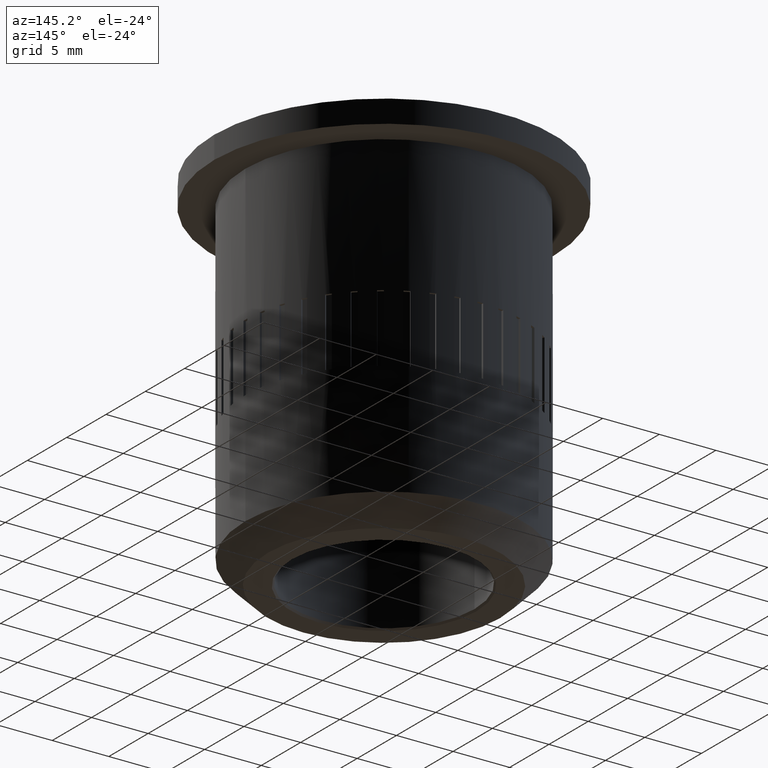
[diagram: clean part render]
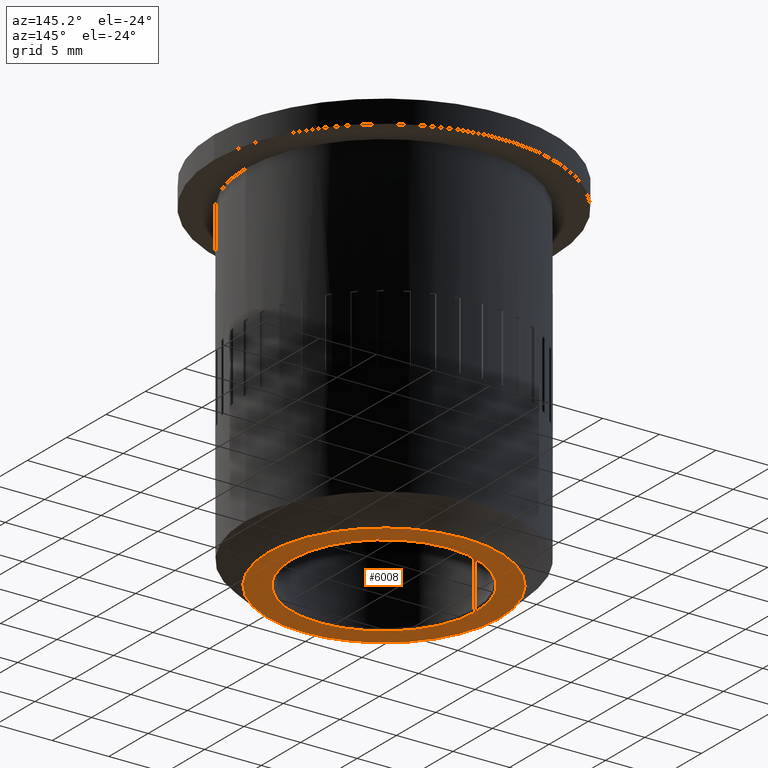
[diagram: same view with one face highlighted and labeled with its STEP entity id]
A machine part, auxiliary view. The second image highlights one B-rep face of the part: STEP entity #6008.
In plain terms, the highlighted planar face has unit normal (0, 0, 1).
Its self-contained STEP definition (entity closure, byte-faithful):
#123 = EDGE_LOOP ( 'NONE', ( #4014, #4012 ) ) ;
#193 = VERTEX_POINT ( 'NONE', #2277 ) ;
#222 = VERTEX_POINT ( 'NONE', #2297 ) ;
#229 = VERTEX_POINT ( 'NONE', #1211 ) ;
#235 = VERTEX_POINT ( 'NONE', #1226 ) ;
#775 = PLANE ( 'NONE',  #3309 ) ;
#776 = CARTESIAN_POINT ( 'NONE',  ( 0.0000000000000000000, 0.0000000000000000000, 0.0000000000000000000 ) ) ;
#777 = DIRECTION ( 'NONE',  ( 0.0000000000000000000, 0.0000000000000000000, 1.000000000000000000 ) ) ;
#778 = DIRECTION ( 'NONE',  ( 1.000000000000000000, 0.0000000000000000000, -0.0000000000000000000 ) ) ;
#892 = EDGE_CURVE ( 'NONE', #229, #235, #5231, .T. ) ;
#1099 = CARTESIAN_POINT ( 'NONE',  ( 0.0000000000000000000, 0.0000000000000000000, 0.0000000000000000000 ) ) ;
#1100 = DIRECTION ( 'NONE',  ( 0.0000000000000000000, 0.0000000000000000000, 1.000000000000000000 ) ) ;
#1101 = DIRECTION ( 'NONE',  ( 1.000000000000000000, 0.0000000000000000000, 0.0000000000000000000 ) ) ;
#1211 = CARTESIAN_POINT ( 'NONE',  ( -8.149999999999996800, 0.0000000000000000000, 0.0000000000000000000 ) ) ;
#1215 = CARTESIAN_POINT ( 'NONE',  ( 0.0000000000000000000, 0.0000000000000000000, 0.0000000000000000000 ) ) ;
#1217 = DIRECTION ( 'NONE',  ( 0.0000000000000000000, 0.0000000000000000000, 1.000000000000000000 ) ) ;
#1226 = CARTESIAN_POINT ( 'NONE',  ( 8.149999999999996800, 9.980871413050924000E-016, 0.0000000000000000000 ) ) ;
#1254 = EDGE_LOOP ( 'NONE', ( #4008, #4010 ) ) ;
#1274 = EDGE_CURVE ( 'NONE', #235, #229, #4852, .T. ) ;
#1491 = CARTESIAN_POINT ( 'NONE',  ( 0.0000000000000000000, 0.0000000000000000000, 0.0000000000000000000 ) ) ;
#1492 = DIRECTION ( 'NONE',  ( -0.0000000000000000000, -0.0000000000000000000, -1.000000000000000000 ) ) ;
#1493 = DIRECTION ( 'NONE',  ( 1.000000000000000000, 0.0000000000000000000, 0.0000000000000000000 ) ) ;
#2162 = CIRCLE ( 'NONE', #2774, 10.24999999999999800 ) ;
#2277 = CARTESIAN_POINT ( 'NONE',  ( -10.24999999999999800, 1.377727649040772400E-015, 0.0000000000000000000 ) ) ;
#2297 = CARTESIAN_POINT ( 'NONE',  ( 10.24999999999999800, 0.0000000000000000000, 0.0000000000000000000 ) ) ;
#2428 = CIRCLE ( 'NONE', #2754, 10.24999999999999800 ) ;
#2643 = EDGE_CURVE ( 'NONE', #193, #222, #2428, .T. ) ;
#2687 = AXIS2_PLACEMENT_3D ( 'NONE', #1099, #1100, #1101 ) ;
#2701 = AXIS2_PLACEMENT_3D ( 'NONE', #1215, #1217, #5074 ) ;
#2754 = AXIS2_PLACEMENT_3D ( 'NONE', #5791, #5792, #5793 ) ;
#2774 = AXIS2_PLACEMENT_3D ( 'NONE', #1491, #1492, #1493 ) ;
#3173 = FACE_OUTER_BOUND ( 'NONE', #1254, .T. ) ;
#3174 = FACE_BOUND ( 'NONE', #123, .T. ) ;
#3309 = AXIS2_PLACEMENT_3D ( 'NONE', #776, #777, #778 ) ;
#4008 = ORIENTED_EDGE ( 'NONE', *, *, #4171, .T. ) ;
#4010 = ORIENTED_EDGE ( 'NONE', *, *, #2643, .T. ) ;
#4012 = ORIENTED_EDGE ( 'NONE', *, *, #1274, .T. ) ;
#4014 = ORIENTED_EDGE ( 'NONE', *, *, #892, .T. ) ;
#4171 = EDGE_CURVE ( 'NONE', #222, #193, #2162, .T. ) ;
#4852 = CIRCLE ( 'NONE', #2701, 8.149999999999996800 ) ;
#5074 = DIRECTION ( 'NONE',  ( 1.000000000000000000, 0.0000000000000000000, 0.0000000000000000000 ) ) ;
#5231 = CIRCLE ( 'NONE', #2687, 8.149999999999996800 ) ;
#5791 = CARTESIAN_POINT ( 'NONE',  ( 0.0000000000000000000, 0.0000000000000000000, 0.0000000000000000000 ) ) ;
#5792 = DIRECTION ( 'NONE',  ( -0.0000000000000000000, -0.0000000000000000000, -1.000000000000000000 ) ) ;
#5793 = DIRECTION ( 'NONE',  ( 1.000000000000000000, 0.0000000000000000000, 0.0000000000000000000 ) ) ;
#6008 = ADVANCED_FACE ( 'NONE', ( #3173, #3174 ), #775, .F. ) ;